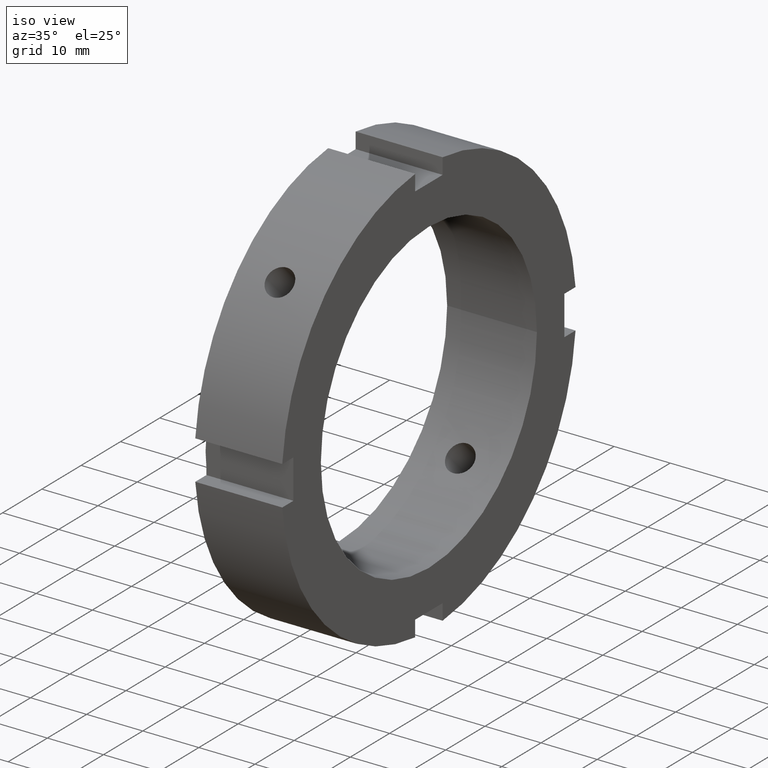
[diagram: clean part render]
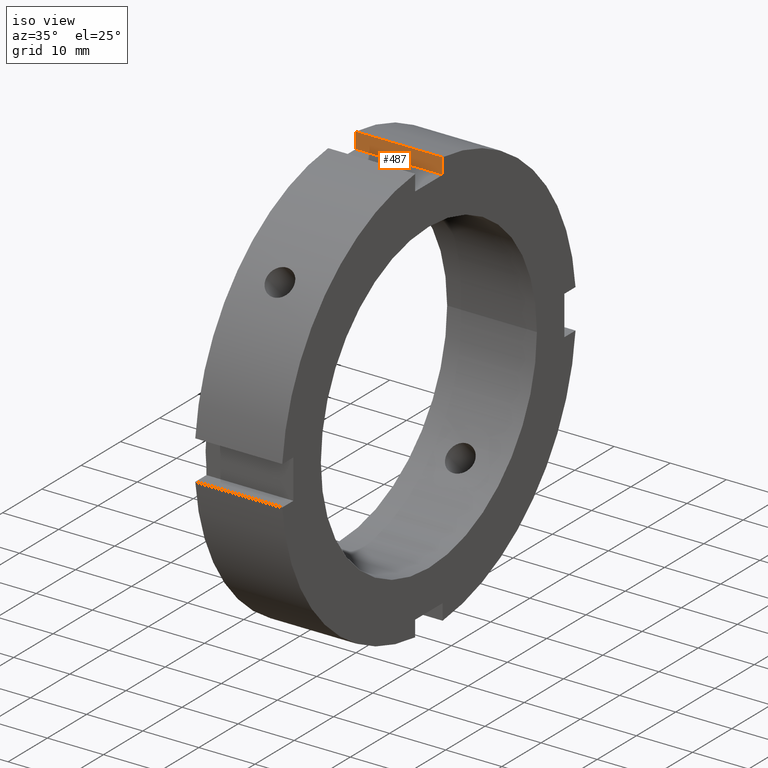
[diagram: same view with one face highlighted and labeled with its STEP entity id]
A machine part, iso view. The second image highlights one B-rep face of the part: STEP entity #487.
In plain terms, the highlighted planar face has unit normal (0, 1, 0).
Its self-contained STEP definition (entity closure, byte-faithful):
#448=CARTESIAN_POINT('',(15.999999999999995,3.500000000000001,34.500000000000000));
#449=DIRECTION('',(0.0,1.0,0.0));
#450=DIRECTION('',(-1.0,0.0,0.0));
#451=AXIS2_PLACEMENT_3D('',#448,#449,#450);
#452=PLANE('',#451);
#453=CARTESIAN_POINT('',(0.499999999999992,3.500000000000001,34.500000000000000));
#454=VERTEX_POINT('',#453);
#455=CARTESIAN_POINT('',(0.499999999999989,3.500000000000001,37.336309405188935));
#456=VERTEX_POINT('',#455);
#457=CARTESIAN_POINT('',(0.499999999999992,3.500000000000002,34.500000000000000));
#458=DIRECTION('',(0.0,0.0,1.0));
#459=VECTOR('',#458,2.836309405188928);
#460=LINE('',#457,#459);
#461=EDGE_CURVE('',#454,#456,#460,.T.);
#462=ORIENTED_EDGE('',*,*,#461,.F.);
#463=CARTESIAN_POINT('',(15.999999999999995,3.500000000000001,34.500000000000000));
#464=VERTEX_POINT('',#463);
#465=CARTESIAN_POINT('',(15.999999999999995,3.500000000000001,34.500000000000000));
#466=DIRECTION('',(-1.0,0.0,0.0));
#467=VECTOR('',#466,15.500000000000004);
#468=LINE('',#465,#467);
#469=EDGE_CURVE('',#464,#454,#468,.T.);
#470=ORIENTED_EDGE('',*,*,#469,.F.);
#471=CARTESIAN_POINT('',(15.999999999999995,3.500000000000001,37.336309405188935));
#472=VERTEX_POINT('',#471);
#473=CARTESIAN_POINT('',(15.999999999999995,3.500000000000002,37.336309405188928));
#474=DIRECTION('',(0.0,0.0,-1.0));
#475=VECTOR('',#474,2.836309405188928);
#476=LINE('',#473,#475);
#477=EDGE_CURVE('',#472,#464,#476,.T.);
#478=ORIENTED_EDGE('',*,*,#477,.F.);
#479=CARTESIAN_POINT('',(0.499999999999989,3.500000000000001,37.336309405188935));
#480=DIRECTION('',(1.0,0.0,0.0));
#481=VECTOR('',#480,15.500000000000005);
#482=LINE('',#479,#481);
#483=EDGE_CURVE('',#456,#472,#482,.T.);
#484=ORIENTED_EDGE('',*,*,#483,.F.);
#485=EDGE_LOOP('',(#462,#470,#478,#484));
#486=FACE_OUTER_BOUND('',#485,.T.);
#487=ADVANCED_FACE('',(#486),#452,.F.);